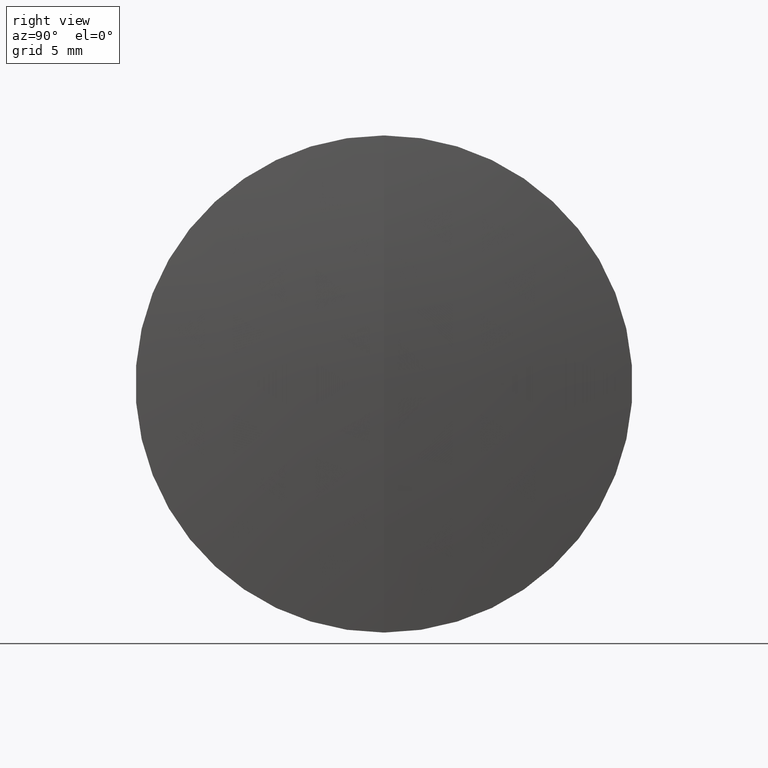
[diagram: clean part render]
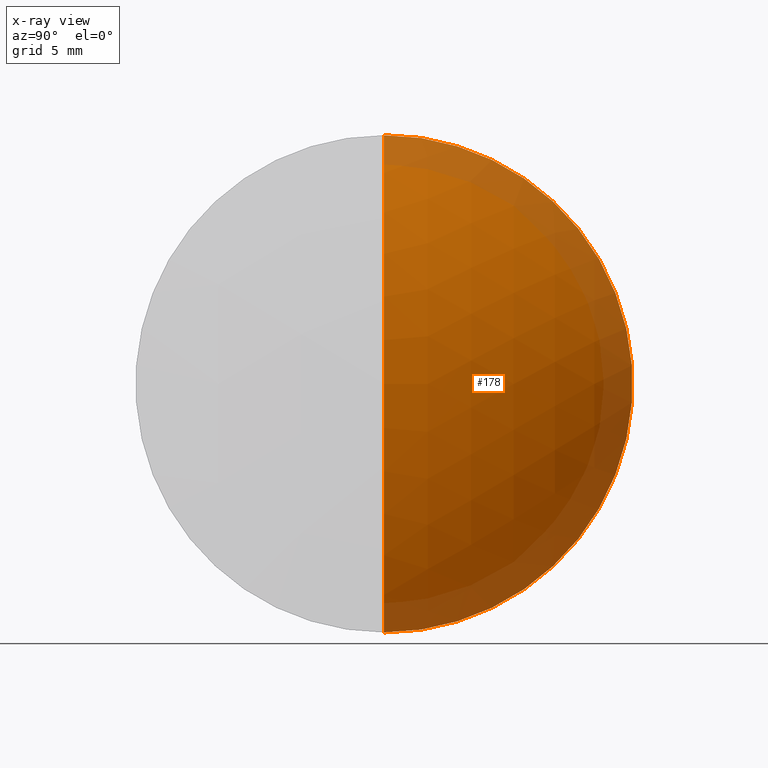
[diagram: x-ray — body ghosted, one internal face saturated and labeled with its STEP entity id]
A machine part, right view, then the same camera in x-ray: the body is ghosted and one INTERNAL B-rep face — a face not visible from any outside direction — is saturated and labeled: STEP entity #178.
In plain terms, the highlighted spherical surface has radius 35.56 mm.
Its self-contained STEP definition (entity closure, byte-faithful):
#29 = VERTEX_POINT ( 'NONE', #194 ) ;
#34 = DIRECTION ( 'NONE',  ( 0.0000000000000000000, 0.0000000000000000000, 1.000000000000000000 ) ) ;
#35 = EDGE_CURVE ( 'NONE', #84, #29, #105, .T. ) ;
#37 = CARTESIAN_POINT ( 'NONE',  ( 265.6441532013300800, 0.0000000000000000000, 9.540697513941529600E-015 ) ) ;
#44 = VERTEX_POINT ( 'NONE', #283 ) ;
#56 = FACE_OUTER_BOUND ( 'NONE', #339, .T. ) ;
#63 = AXIS2_PLACEMENT_3D ( 'NONE', #215, #129, #263 ) ;
#69 = CARTESIAN_POINT ( 'NONE',  ( 230.0841532013300500, 0.0000000000000000000, 7.363275505057532400E-015 ) ) ;
#79 = DIRECTION ( 'NONE',  ( -1.000000000000000000, -0.0000000000000000000, -0.0000000000000000000 ) ) ;
#84 = VERTEX_POINT ( 'NONE', #37 ) ;
#89 = AXIS2_PLACEMENT_3D ( 'NONE', #171, #79, #34 ) ;
#104 = EDGE_CURVE ( 'NONE', #44, #29, #243, .T. ) ;
#105 = CIRCLE ( 'NONE', #63, 35.56000000000003800 ) ;
#129 = DIRECTION ( 'NONE',  ( -0.0000000000000000000, 1.000000000000000000, 1.224646799147353200E-016 ) ) ;
#143 = DIRECTION ( 'NONE',  ( 0.0000000000000000000, -1.000000000000000000, 0.0000000000000000000 ) ) ;
#161 = DIRECTION ( 'NONE',  ( 0.0000000000000000000, 1.000000000000000000, 0.0000000000000000000 ) ) ;
#169 = DIRECTION ( 'NONE',  ( 0.0000000000000000000, 0.0000000000000000000, -1.000000000000000000 ) ) ;
#171 = CARTESIAN_POINT ( 'NONE',  ( 259.4867653301869300, 0.0000000000000000000, 0.0000000000000000000 ) ) ;
#173 = ORIENTED_EDGE ( 'NONE', *, *, #35, .T. ) ;
#178 = ADVANCED_FACE ( 'NONE', ( #56 ), #341, .T. ) ;
#194 = CARTESIAN_POINT ( 'NONE',  ( 259.4867653301869300, 2.449293598294707300E-015, -20.00000000000000700 ) ) ;
#210 = DIRECTION ( 'NONE',  ( 0.0000000000000000000, 0.0000000000000000000, 1.000000000000000000 ) ) ;
#215 = CARTESIAN_POINT ( 'NONE',  ( 230.0841532013300500, 0.0000000000000000000, 7.363275505057532400E-015 ) ) ;
#243 = CIRCLE ( 'NONE', #89, 20.00000000000000700 ) ;
#245 = AXIS2_PLACEMENT_3D ( 'NONE', #277, #143, #169 ) ;
#249 = AXIS2_PLACEMENT_3D ( 'NONE', #69, #161, #210 ) ;
#263 = DIRECTION ( 'NONE',  ( 0.0000000000000000000, -1.224646799147353200E-016, 1.000000000000000000 ) ) ;
#273 = CIRCLE ( 'NONE', #245, 35.56000000000003800 ) ;
#277 = CARTESIAN_POINT ( 'NONE',  ( 230.0841532013300500, 0.0000000000000000000, 7.363275505057532400E-015 ) ) ;
#283 = CARTESIAN_POINT ( 'NONE',  ( 259.4867653301869300, 0.0000000000000000000, 20.00000000000000700 ) ) ;
#284 = ORIENTED_EDGE ( 'NONE', *, *, #104, .F. ) ;
#289 = EDGE_CURVE ( 'NONE', #84, #44, #273, .T. ) ;
#331 = ORIENTED_EDGE ( 'NONE', *, *, #289, .F. ) ;
#339 = EDGE_LOOP ( 'NONE', ( #331, #173, #284 ) ) ;
#341 = SPHERICAL_SURFACE ( 'NONE', #249, 35.56000000000003800 ) ;